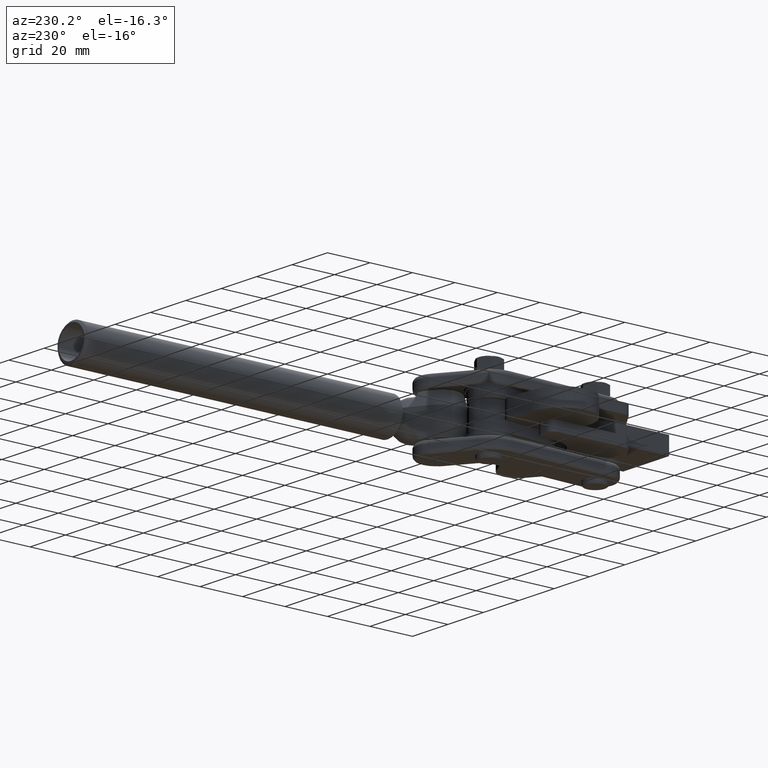
[diagram: clean part render]
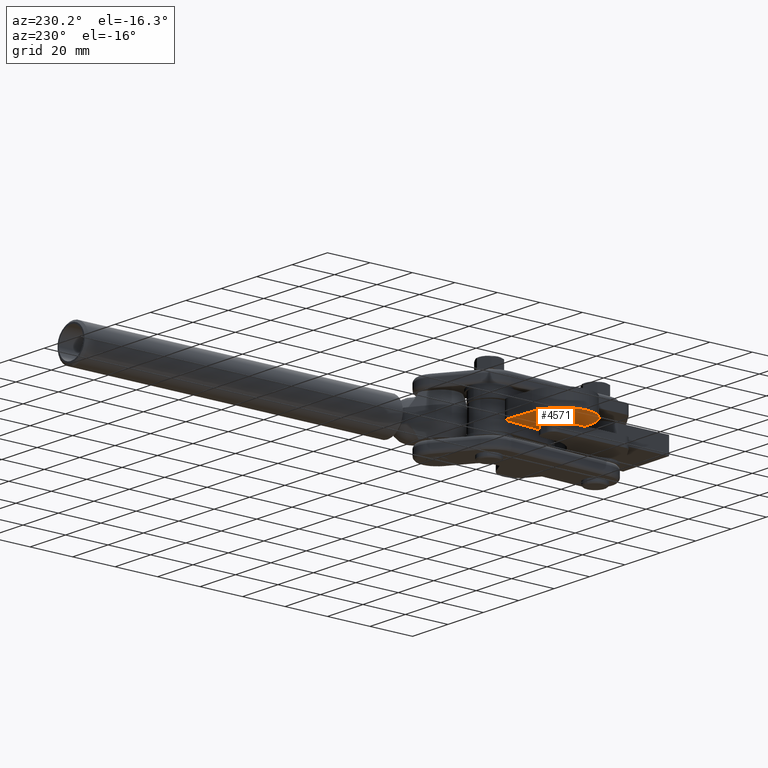
[diagram: same view with one face highlighted and labeled with its STEP entity id]
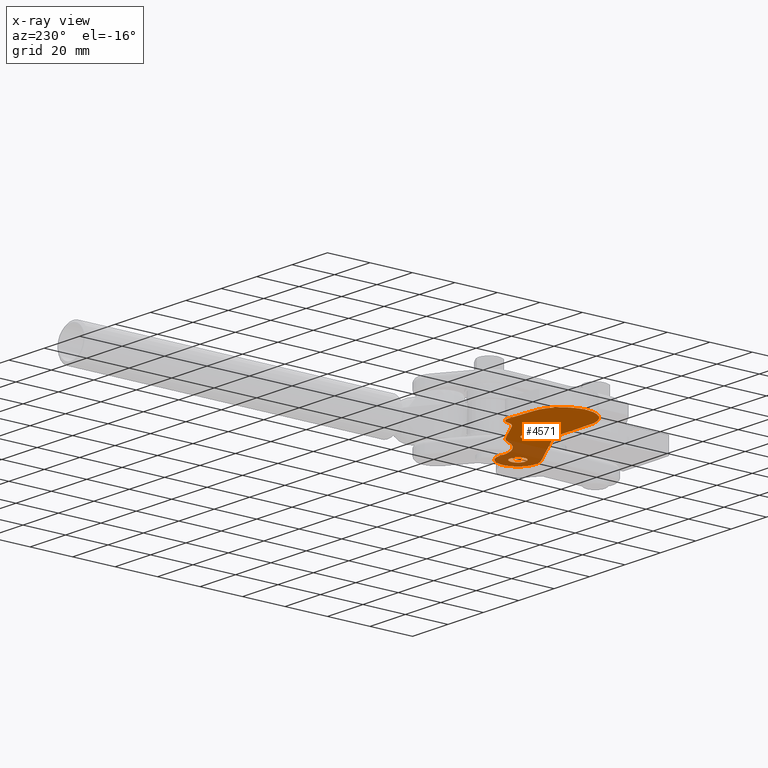
[diagram: x-ray of the same camera — body ghosted, the highlighted face saturated]
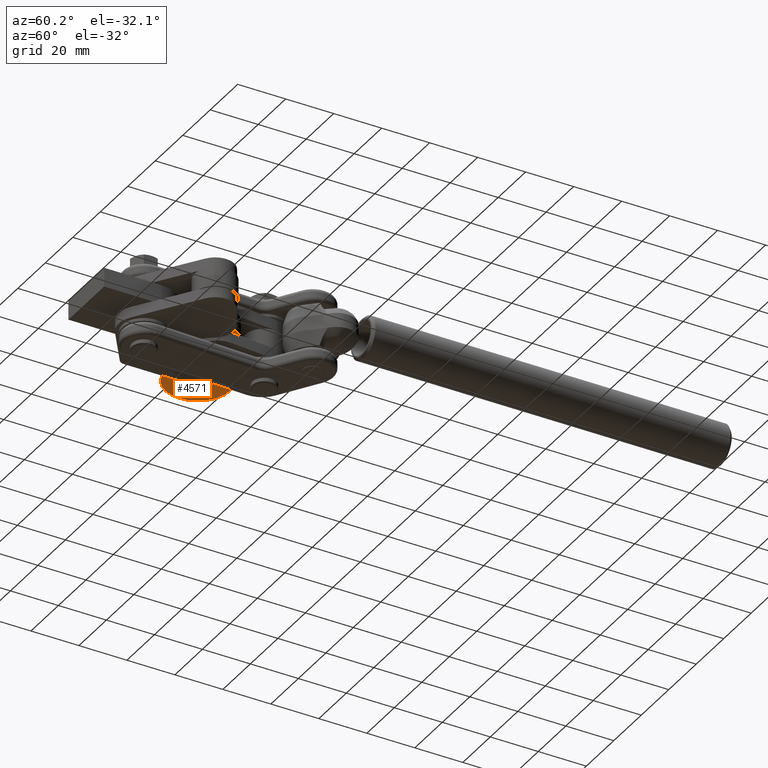
[diagram: same view with one face highlighted and labeled with its STEP entity id]
A machine part, auxiliary view. The second image highlights one B-rep face of the part: STEP entity #4571.
The next image is the same camera in x-ray: the body ghosted, the highlighted face saturated — about 24% of this face is hidden behind the body in this view.
A second angle (auxiliary view) of the same face is appended — the face is thin or edge-on in the first view.
In plain terms, the highlighted planar face has unit normal (0, 0, 1).
Its self-contained STEP definition (entity closure, byte-faithful):
#303 = VERTEX_POINT ( 'NONE', #6045 ) ;
#310 = FACE_OUTER_BOUND ( 'NONE', #10710, .T. ) ;
#329 = DIRECTION ( 'NONE',  ( -0.9611167817664018100, 0.2761422311183037700, 2.758206208038161700E-018 ) ) ;
#379 = VERTEX_POINT ( 'NONE', #13566 ) ;
#389 = ORIENTED_EDGE ( 'NONE', *, *, #4586, .F. ) ;
#394 = LINE ( 'NONE', #12181, #5665 ) ;
#464 = EDGE_CURVE ( 'NONE', #8028, #303, #7836, .T. ) ;
#606 = VERTEX_POINT ( 'NONE', #2466 ) ;
#644 = AXIS2_PLACEMENT_3D ( 'NONE', #10159, #3788, #11211 ) ;
#703 = AXIS2_PLACEMENT_3D ( 'NONE', #6291, #13678, #7358 ) ;
#771 = ORIENTED_EDGE ( 'NONE', *, *, #4052, .F. ) ;
#796 = LINE ( 'NONE', #9599, #6060 ) ;
#802 = ORIENTED_EDGE ( 'NONE', *, *, #8467, .F. ) ;
#847 = AXIS2_PLACEMENT_3D ( 'NONE', #8904, #2545, #9945 ) ;
#1130 = EDGE_CURVE ( 'NONE', #2923, #5929, #1706, .T. ) ;
#1176 = DIRECTION ( 'NONE',  ( 4.280963818240967600E-017, 1.390111730283586200E-016, 1.000000000000000000 ) ) ;
#1281 = DIRECTION ( 'NONE',  ( -4.280963818240967600E-017, -1.390111730283586200E-016, -1.000000000000000000 ) ) ;
#1403 = ORIENTED_EDGE ( 'NONE', *, *, #1713, .F. ) ;
#1422 = CARTESIAN_POINT ( 'NONE',  ( 3.108849245733115800, 52.70875434015797400, -3.999999999999998200 ) ) ;
#1518 = ORIENTED_EDGE ( 'NONE', *, *, #11067, .F. ) ;
#1534 = DIRECTION ( 'NONE',  ( 4.280963818240970700E-017, 1.390111730283586700E-016, 1.000000000000000000 ) ) ;
#1557 = EDGE_CURVE ( 'NONE', #9509, #10946, #10288, .T. ) ;
#1574 = DIRECTION ( 'NONE',  ( 4.280963818240967600E-017, 1.390111730283586200E-016, 1.000000000000000000 ) ) ;
#1684 = CIRCLE ( 'NONE', #7678, 9.999999999999994700 ) ;
#1706 = CIRCLE ( 'NONE', #5603, 8.499999999999994700 ) ;
#1713 = EDGE_CURVE ( 'NONE', #9509, #13160, #1684, .T. ) ;
#1833 = DIRECTION ( 'NONE',  ( 2.017846745673936800E-017, -3.579765898987047600E-017, -1.000000000000000000 ) ) ;
#1903 = VECTOR ( 'NONE', #5115, 999.9999999999998900 ) ;
#1907 = AXIS2_PLACEMENT_3D ( 'NONE', #7759, #1574, #11137 ) ;
#2057 = CARTESIAN_POINT ( 'NONE',  ( -25.53843458512146800, 74.91955261497554400, -4.000000000000000900 ) ) ;
#2192 = ORIENTED_EDGE ( 'NONE', *, *, #1130, .F. ) ;
#2214 = VERTEX_POINT ( 'NONE', #10612 ) ;
#2308 = DIRECTION ( 'NONE',  ( 4.280963818240967600E-017, 1.390111730283586200E-016, 1.000000000000000000 ) ) ;
#2466 = CARTESIAN_POINT ( 'NONE',  ( 6.999544392929140100, 60.29219226518822700, -3.999999999999999100 ) ) ;
#2478 = CARTESIAN_POINT ( 'NONE',  ( 24.71209426680241000, 47.21658362808563000, -3.999999999999998200 ) ) ;
#2545 = DIRECTION ( 'NONE',  ( 4.280963818240967600E-017, 1.390111730283586200E-016, 1.000000000000000000 ) ) ;
#2610 = VERTEX_POINT ( 'NONE', #5104 ) ;
#2696 = ORIENTED_EDGE ( 'NONE', *, *, #10859, .T. ) ;
#2733 = EDGE_LOOP ( 'NONE', ( #12908, #5413 ) ) ;
#2749 = CIRCLE ( 'NONE', #644, 13.50000000000000000 ) ;
#2805 = CIRCLE ( 'NONE', #4715, 5.999999999999983100 ) ;
#2832 = CIRCLE ( 'NONE', #9664, 3.499999999999999100 ) ;
#2836 = AXIS2_PLACEMENT_3D ( 'NONE', #11685, #5334, #12757 ) ;
#2923 = VERTEX_POINT ( 'NONE', #7705 ) ;
#2976 = VERTEX_POINT ( 'NONE', #13106 ) ;
#3010 = AXIS2_PLACEMENT_3D ( 'NONE', #5218, #12636, #6303 ) ;
#3091 = CARTESIAN_POINT ( 'NONE',  ( 33.15560979070409800, 34.37211940478405800, -3.999999999999997300 ) ) ;
#3522 = CARTESIAN_POINT ( 'NONE',  ( -7.877074267398493900, 37.74024782050781100, -3.999999999999996400 ) ) ;
#3561 = CIRCLE ( 'NONE', #2836, 9.499999999999991100 ) ;
#3565 = PLANE ( 'NONE',  #9887 ) ;
#3610 = CARTESIAN_POINT ( 'NONE',  ( -26.84491984047457100, 74.84251412023201100, -4.000000000000000900 ) ) ;
#3619 = ORIENTED_EDGE ( 'NONE', *, *, #1557, .T. ) ;
#3625 = CARTESIAN_POINT ( 'NONE',  ( -5.864808243055432700, 68.14292005372678300, -4.000000000000000000 ) ) ;
#3788 = DIRECTION ( 'NONE',  ( 4.280963818240970000E-017, 1.390111730283586700E-016, 1.000000000000000000 ) ) ;
#3842 = EDGE_CURVE ( 'NONE', #12073, #2214, #13553, .T. ) ;
#3953 = DIRECTION ( 'NONE',  ( -4.280963818240967600E-017, -1.390111730283586200E-016, -1.000000000000000000 ) ) ;
#4026 = CIRCLE ( 'NONE', #9271, 8.500000000000051500 ) ;
#4052 = EDGE_CURVE ( 'NONE', #9955, #8028, #2805, .T. ) ;
#4201 = ORIENTED_EDGE ( 'NONE', *, *, #3842, .F. ) ;
#4571 = ADVANCED_FACE ( 'NONE', ( #5927, #8437, #310 ), #3565, .F. ) ;
#4586 = EDGE_CURVE ( 'NONE', #303, #5464, #5577, .T. ) ;
#4625 = VECTOR ( 'NONE', #329, 1000.000000000000100 ) ;
#4677 = DIRECTION ( 'NONE',  ( -4.280963818240967600E-017, -1.390111730283586200E-016, -1.000000000000000000 ) ) ;
#4715 = AXIS2_PLACEMENT_3D ( 'NONE', #11042, #4677, #12095 ) ;
#4748 = CARTESIAN_POINT ( 'NONE',  ( -7.808228198321939000, 47.74001082863816900, -3.999999999999996400 ) ) ;
#5104 = CARTESIAN_POINT ( 'NONE',  ( -2.866358817187251200, 56.35524424207891800, -3.999999999999998200 ) ) ;
#5115 = DIRECTION ( 'NONE',  ( -0.8536011518457635700, 0.5209271288458546800, -3.587233478055189700E-017 ) ) ;
#5213 = ORIENTED_EDGE ( 'NONE', *, *, #10318, .F. ) ;
#5218 = CARTESIAN_POINT ( 'NONE',  ( 25.90000000001508000, 38.79999999997377800, -3.999999999999997300 ) ) ;
#5334 = DIRECTION ( 'NONE',  ( -4.280963818240967600E-017, -1.390111730283586200E-016, -1.000000000000000000 ) ) ;
#5413 = ORIENTED_EDGE ( 'NONE', *, *, #12346, .F. ) ;
#5464 = VERTEX_POINT ( 'NONE', #2057 ) ;
#5473 = DIRECTION ( 'NONE',  ( 2.017846745673936800E-017, -3.579765898987047600E-017, -1.000000000000000000 ) ) ;
#5541 = DIRECTION ( 'NONE',  ( 0.5209271288458500200, 0.8536011518457665700, -1.020425574104004900E-016 ) ) ;
#5577 = LINE ( 'NONE', #3610, #11231 ) ;
#5603 = AXIS2_PLACEMENT_3D ( 'NONE', #7281, #1176, #5541 ) ;
#5665 = VECTOR ( 'NONE', #9071, 1000.000000000000000 ) ;
#5676 = CARTESIAN_POINT ( 'NONE',  ( -8.164832957990750400, 47.84246834038963000, -3.999999999999997300 ) ) ;
#5700 = CARTESIAN_POINT ( 'NONE',  ( 39.82660056468535700, 45.30333241578456000, -3.999999999999999100 ) ) ;
#5763 = DIRECTION ( 'NONE',  ( 0.9908800054895677800, 0.1347472252812432200, -6.115058436585466000E-017 ) ) ;
#5927 = FACE_BOUND ( 'NONE', #2733, .T. ) ;
#5929 = VERTEX_POINT ( 'NONE', #3091 ) ;
#5932 = EDGE_CURVE ( 'NONE', #379, #11832, #11822, .T. ) ;
#5975 = CIRCLE ( 'NONE', #3010, 3.499999999999999100 ) ;
#6045 = CARTESIAN_POINT ( 'NONE',  ( -12.84753484399471900, 75.66788697924880600, -4.000000000000000000 ) ) ;
#6060 = VECTOR ( 'NONE', #11718, 1000.000000000000100 ) ;
#6291 = CARTESIAN_POINT ( 'NONE',  ( 25.90000000001508000, 38.79999999997377800, -3.999999999999997300 ) ) ;
#6303 = DIRECTION ( 'NONE',  ( -0.8536011518457667900, 0.5209271288458492400, 0.0000000000000000000 ) ) ;
#6423 = VECTOR ( 'NONE', #5763, 1000.000000000000100 ) ;
#6427 = AXIS2_PLACEMENT_3D ( 'NONE', #7594, #1281, #8664 ) ;
#6510 = CARTESIAN_POINT ( 'NONE',  ( -25.93634118496200400, 74.86544231912481000, -4.000000000000000900 ) ) ;
#6748 = EDGE_LOOP ( 'NONE', ( #802, #13162 ) ) ;
#6875 = CARTESIAN_POINT ( 'NONE',  ( 21.84791358839372000, 47.24843478152994400, -3.999999999999998200 ) ) ;
#6896 = CARTESIAN_POINT ( 'NONE',  ( -2.667802978939998800, 46.27625933896546700, -3.999999999999997300 ) ) ;
#7212 = ORIENTED_EDGE ( 'NONE', *, *, #11887, .F. ) ;
#7281 = CARTESIAN_POINT ( 'NONE',  ( 25.90000000001508000, 38.79999999997377800, -3.999999999999997300 ) ) ;
#7358 = DIRECTION ( 'NONE',  ( -0.8536011518457667900, 0.5209271288458492400, 0.0000000000000000000 ) ) ;
#7524 = LINE ( 'NONE', #13622, #1903 ) ;
#7583 = CARTESIAN_POINT ( 'NONE',  ( 36.84093546930016300, 34.91168454545383800, -3.999999999999998200 ) ) ;
#7594 = CARTESIAN_POINT ( 'NONE',  ( 24.27399989816835600, 62.05093812446232700, -4.000000000000000900 ) ) ;
#7678 = AXIS2_PLACEMENT_3D ( 'NONE', #3522, #3953, #10749 ) ;
#7705 = CARTESIAN_POINT ( 'NONE',  ( 21.47211940482535700, 31.54439020928475300, -3.999999999999996400 ) ) ;
#7759 = CARTESIAN_POINT ( 'NONE',  ( -12.61207895749263000, 71.67482292698120700, -4.000000000000000000 ) ) ;
#7836 = CIRCLE ( 'NONE', #1907, 4.000000000000020400 ) ;
#8028 = VERTEX_POINT ( 'NONE', #9770 ) ;
#8175 = CARTESIAN_POINT ( 'NONE',  ( 0.1212452142729317200, 54.53199929111844600, -3.999999999999998200 ) ) ;
#8318 = EDGE_CURVE ( 'NONE', #2610, #8571, #2832, .T. ) ;
#8377 = CIRCLE ( 'NONE', #847, 8.499999999999994700 ) ;
#8437 = FACE_BOUND ( 'NONE', #6748, .T. ) ;
#8467 = EDGE_CURVE ( 'NONE', #11832, #379, #5975, .T. ) ;
#8571 = VERTEX_POINT ( 'NONE', #1422 ) ;
#8652 = CARTESIAN_POINT ( 'NONE',  ( 2.571663797739407500, 53.03658247449919800, -3.999999999999998200 ) ) ;
#8664 = DIRECTION ( 'NONE',  ( 0.5209271288458484600, 0.8536011518457673500, -1.156482317317871200E-016 ) ) ;
#8904 = CARTESIAN_POINT ( 'NONE',  ( 25.90000000001508000, 38.79999999997377800, -3.999999999999997300 ) ) ;
#8938 = DIRECTION ( 'NONE',  ( 0.5209271288458498000, 0.8536011518457665700, -1.409607993217304700E-016 ) ) ;
#9071 = DIRECTION ( 'NONE',  ( 0.8536011518457665700, -0.5209271288458498000, 3.587233478055108900E-017 ) ) ;
#9248 = DIRECTION ( 'NONE',  ( -0.8536011518457667900, 0.5209271288458492400, 0.0000000000000000000 ) ) ;
#9271 = AXIS2_PLACEMENT_3D ( 'NONE', #8652, #2308, #9706 ) ;
#9366 = CIRCLE ( 'NONE', #10679, 3.499999999999999100 ) ;
#9509 = VERTEX_POINT ( 'NONE', #4748 ) ;
#9573 = LINE ( 'NONE', #9982, #6423 ) ;
#9599 = CARTESIAN_POINT ( 'NONE',  ( 39.84180641417019300, 47.51195366642560500, -3.999999999999999100 ) ) ;
#9664 = AXIS2_PLACEMENT_3D ( 'NONE', #8175, #1833, #9248 ) ;
#9706 = DIRECTION ( 'NONE',  ( 0.5209271288458498000, 0.8536011518457664600, -1.020425574103998000E-016 ) ) ;
#9770 = CARTESIAN_POINT ( 'NONE',  ( -8.662945562487738700, 72.31070454210930600, -4.000000000000000000 ) ) ;
#9887 = AXIS2_PLACEMENT_3D ( 'NONE', #5700, #1534, #8938 ) ;
#9945 = DIRECTION ( 'NONE',  ( 0.5209271288458500200, 0.8536011518457665700, -1.020425574104004900E-016 ) ) ;
#9955 = VERTEX_POINT ( 'NONE', #3625 ) ;
#9976 = EDGE_CURVE ( 'NONE', #12329, #5464, #9573, .T. ) ;
#9982 = CARTESIAN_POINT ( 'NONE',  ( 34.68547143104837000, 83.10924681237519000, -4.000000000000004400 ) ) ;
#10159 = CARTESIAN_POINT ( 'NONE',  ( -26.05025622353003100, 61.36592294382896300, -3.999999999999998200 ) ) ;
#10288 = LINE ( 'NONE', #7583, #4625 ) ;
#10318 = EDGE_CURVE ( 'NONE', #10496, #12073, #3561, .T. ) ;
#10389 = ORIENTED_EDGE ( 'NONE', *, *, #464, .F. ) ;
#10411 = CARTESIAN_POINT ( 'NONE',  ( 22.91239596855489700, 40.62324495093425000, -3.999999999999997300 ) ) ;
#10496 = VERTEX_POINT ( 'NONE', #2478 ) ;
#10612 = CARTESIAN_POINT ( 'NONE',  ( 10.42144494044779700, 56.29709409257098000, -3.999999999999999100 ) ) ;
#10679 = AXIS2_PLACEMENT_3D ( 'NONE', #11827, #5473, #12892 ) ;
#10710 = EDGE_LOOP ( 'NONE', ( #1518, #12603, #389, #10389, #771, #7212, #11689, #4201, #5213, #12894, #2192, #11372, #1403, #3619, #2696 ) ) ;
#10749 = DIRECTION ( 'NONE',  ( 0.5209271288458506800, 0.8536011518457660200, -1.734723475976808100E-016 ) ) ;
#10859 = EDGE_CURVE ( 'NONE', #10946, #2976, #796, .T. ) ;
#10946 = VERTEX_POINT ( 'NONE', #5676 ) ;
#11042 = CARTESIAN_POINT ( 'NONE',  ( -2.739245469980559300, 73.26452696480140500, -4.000000000000000900 ) ) ;
#11067 = EDGE_CURVE ( 'NONE', #12329, #2976, #2749, .T. ) ;
#11137 = DIRECTION ( 'NONE',  ( 0.5209271288458498000, 0.8536011518457666800, -2.168404344970997800E-016 ) ) ;
#11211 = DIRECTION ( 'NONE',  ( 0.5209271288458498000, 0.8536011518457664600, -1.284980352575412700E-016 ) ) ;
#11231 = VECTOR ( 'NONE', #12048, 1000.000000000000100 ) ;
#11372 = ORIENTED_EDGE ( 'NONE', *, *, #12637, .F. ) ;
#11542 = EDGE_CURVE ( 'NONE', #5929, #10496, #8377, .T. ) ;
#11685 = CARTESIAN_POINT ( 'NONE',  ( 23.38443491791767000, 56.62335356538709900, -4.000000000000000000 ) ) ;
#11689 = ORIENTED_EDGE ( 'NONE', *, *, #12326, .F. ) ;
#11718 = DIRECTION ( 'NONE',  ( -0.9999763008130376800, 0.006884606907656742000, 4.185158634671814600E-017 ) ) ;
#11822 = CIRCLE ( 'NONE', #703, 3.499999999999999100 ) ;
#11827 = CARTESIAN_POINT ( 'NONE',  ( 0.1212452142729317200, 54.53199929111844600, -3.999999999999998200 ) ) ;
#11832 = VERTEX_POINT ( 'NONE', #10411 ) ;
#11887 = EDGE_CURVE ( 'NONE', #606, #9955, #7524, .T. ) ;
#12048 = DIRECTION ( 'NONE',  ( -0.9982660130668926700, -0.05886397162552297500, 5.091815657396233600E-017 ) ) ;
#12073 = VERTEX_POINT ( 'NONE', #6875 ) ;
#12095 = DIRECTION ( 'NONE',  ( 0.5209271288458480200, 0.8536011518457676800, -1.445602896647343400E-016 ) ) ;
#12181 = CARTESIAN_POINT ( 'NONE',  ( 21.47211940482535700, 31.54439020928475300, -3.999999999999996400 ) ) ;
#12326 = EDGE_CURVE ( 'NONE', #2214, #606, #4026, .T. ) ;
#12329 = VERTEX_POINT ( 'NONE', #6510 ) ;
#12346 = EDGE_CURVE ( 'NONE', #8571, #2610, #9366, .T. ) ;
#12603 = ORIENTED_EDGE ( 'NONE', *, *, #9976, .T. ) ;
#12636 = DIRECTION ( 'NONE',  ( 2.017846745673936800E-017, -3.579765898987047600E-017, -1.000000000000000000 ) ) ;
#12637 = EDGE_CURVE ( 'NONE', #13160, #2923, #394, .T. ) ;
#12757 = DIRECTION ( 'NONE',  ( 0.5209271288458468000, 0.8536011518457684600, -1.826024711554535400E-016 ) ) ;
#12892 = DIRECTION ( 'NONE',  ( -0.8536011518457667900, 0.5209271288458492400, 0.0000000000000000000 ) ) ;
#12894 = ORIENTED_EDGE ( 'NONE', *, *, #11542, .F. ) ;
#12908 = ORIENTED_EDGE ( 'NONE', *, *, #8318, .F. ) ;
#13106 = CARTESIAN_POINT ( 'NONE',  ( -24.50242687896369600, 47.95494891805069000, -3.999999999999996400 ) ) ;
#13160 = VERTEX_POINT ( 'NONE', #6896 ) ;
#13162 = ORIENTED_EDGE ( 'NONE', *, *, #5932, .F. ) ;
#13553 = CIRCLE ( 'NONE', #6427, 15.00000000000000400 ) ;
#13566 = CARTESIAN_POINT ( 'NONE',  ( 28.88760403147526300, 36.97675504901330600, -3.999999999999997300 ) ) ;
#13622 = CARTESIAN_POINT ( 'NONE',  ( 6.999544392929140100, 60.29219226518822700, -3.999999999999999100 ) ) ;
#13678 = DIRECTION ( 'NONE',  ( 2.017846745673936800E-017, -3.579765898987047600E-017, -1.000000000000000000 ) ) ;